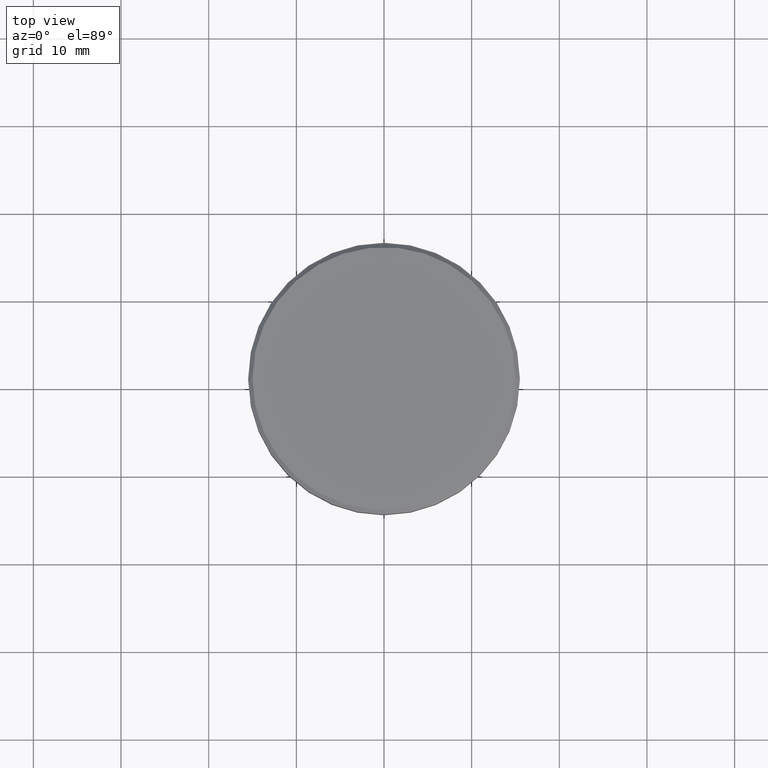
[diagram: clean part render]
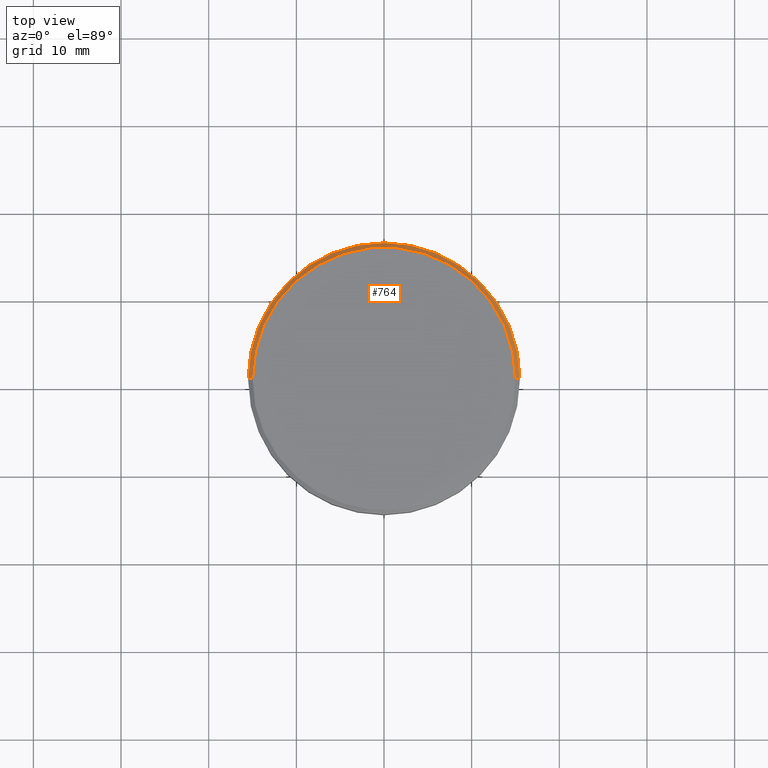
[diagram: same view with one face highlighted and labeled with its STEP entity id]
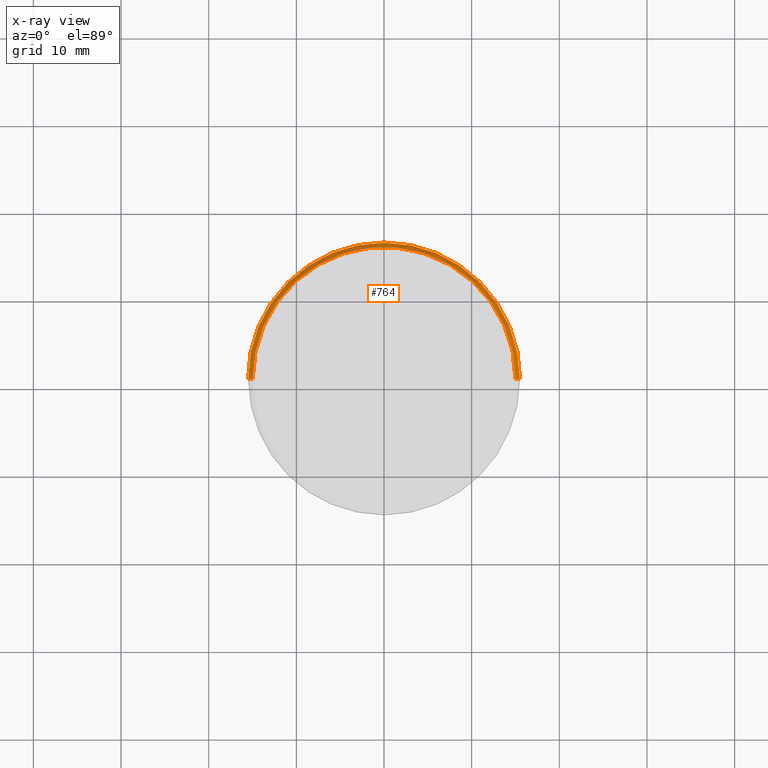
[diagram: x-ray of the same camera — body ghosted, the highlighted face saturated]
A machine part, top view. The second image highlights one B-rep face of the part: STEP entity #764.
The next image is the same camera in x-ray: the body ghosted, the highlighted face saturated — about 0% of this face is hidden behind the body in this view.
In plain terms, the highlighted conical surface has half-angle 45 deg.
Its self-contained STEP definition (entity closure, byte-faithful):
#44 = DIRECTION ( 'NONE',  ( 1.000000000000000000, 0.000000000000000000, 0.000000000000000000 ) ) ;
#97 = EDGE_CURVE ( 'NONE', #1060, #981, #157, .T. ) ;
#111 = DIRECTION ( 'NONE',  ( -1.000000000000000000, 0.000000000000000000, 0.000000000000000000 ) ) ;
#145 = CARTESIAN_POINT ( 'NONE',  ( 0.000000000000000000, 0.000000000000000000, 0.000000000000000000 ) ) ;
#157 = LINE ( 'NONE', #867, #831 ) ;
#186 = AXIS2_PLACEMENT_3D ( 'NONE', #145, #1054, #877 ) ;
#218 = ORIENTED_EDGE ( 'NONE', *, *, #948, .F. ) ;
#227 = DIRECTION ( 'NONE',  ( -0.7071067811865439090, 0.000000000000000000, -0.7071067811865512365 ) ) ;
#245 = AXIS2_PLACEMENT_3D ( 'NONE', #550, #927, #111 ) ;
#324 = CARTESIAN_POINT ( 'NONE',  ( -15.00000000000001421, 0.000000000000000000, 0.000000000000000000 ) ) ;
#458 = CIRCLE ( 'NONE', #777, 15.50000000000000000 ) ;
#540 = LINE ( 'NONE', #920, #701 ) ;
#550 = CARTESIAN_POINT ( 'NONE',  ( 0.000000000000000000, 0.000000000000000000, 0.000000000000000000 ) ) ;
#586 = DIRECTION ( 'NONE',  ( 0.000000000000000000, 0.000000000000000000, -1.000000000000000000 ) ) ;
#600 = CARTESIAN_POINT ( 'NONE',  ( -15.50000000000000000, 1.898202538678397557E-15, -0.4999999999999917843 ) ) ;
#669 = EDGE_CURVE ( 'NONE', #1107, #820, #540, .T. ) ;
#701 = VECTOR ( 'NONE', #937, 999.9999999999998863 ) ;
#724 = CONICAL_SURFACE ( 'NONE', #245, 15.00000000000001421, 0.7853981633974430610 ) ;
#762 = CIRCLE ( 'NONE', #186, 15.00000000000001421 ) ;
#764 = ADVANCED_FACE ( 'NONE', ( #1019 ), #724, .T. ) ;
#772 = CARTESIAN_POINT ( 'NONE',  ( 15.50000000000000000, 0.000000000000000000, -0.4999999999999917843 ) ) ;
#777 = AXIS2_PLACEMENT_3D ( 'NONE', #965, #586, #44 ) ;
#820 = VERTEX_POINT ( 'NONE', #772 ) ;
#831 = VECTOR ( 'NONE', #227, 999.9999999999998863 ) ;
#867 = CARTESIAN_POINT ( 'NONE',  ( -15.00000000000001421, 0.000000000000000000, 0.000000000000000000 ) ) ;
#877 = DIRECTION ( 'NONE',  ( 1.000000000000000000, 0.000000000000000000, 0.000000000000000000 ) ) ;
#901 = ORIENTED_EDGE ( 'NONE', *, *, #917, .F. ) ;
#917 = EDGE_CURVE ( 'NONE', #981, #820, #458, .T. ) ;
#920 = CARTESIAN_POINT ( 'NONE',  ( 15.00000000000001421, 1.836970198721031561E-15, 0.000000000000000000 ) ) ;
#927 = DIRECTION ( 'NONE',  ( 0.000000000000000000, 0.000000000000000000, -1.000000000000000000 ) ) ;
#937 = DIRECTION ( 'NONE',  ( 0.7071067811865439090, 8.659560562354887252E-17, -0.7071067811865512365 ) ) ;
#948 = EDGE_CURVE ( 'NONE', #1107, #1060, #762, .T. ) ;
#958 = ORIENTED_EDGE ( 'NONE', *, *, #97, .F. ) ;
#965 = CARTESIAN_POINT ( 'NONE',  ( 0.000000000000000000, 0.000000000000000000, -0.4999999999999917843 ) ) ;
#981 = VERTEX_POINT ( 'NONE', #600 ) ;
#987 = ORIENTED_EDGE ( 'NONE', *, *, #669, .T. ) ;
#1019 = FACE_OUTER_BOUND ( 'NONE', #1124, .T. ) ;
#1020 = CARTESIAN_POINT ( 'NONE',  ( 15.00000000000001421, 1.867586368699714559E-15, 0.000000000000000000 ) ) ;
#1054 = DIRECTION ( 'NONE',  ( -0.000000000000000000, -0.000000000000000000, 1.000000000000000000 ) ) ;
#1060 = VERTEX_POINT ( 'NONE', #324 ) ;
#1107 = VERTEX_POINT ( 'NONE', #1020 ) ;
#1124 = EDGE_LOOP ( 'NONE', ( #218, #987, #901, #958 ) ) ;